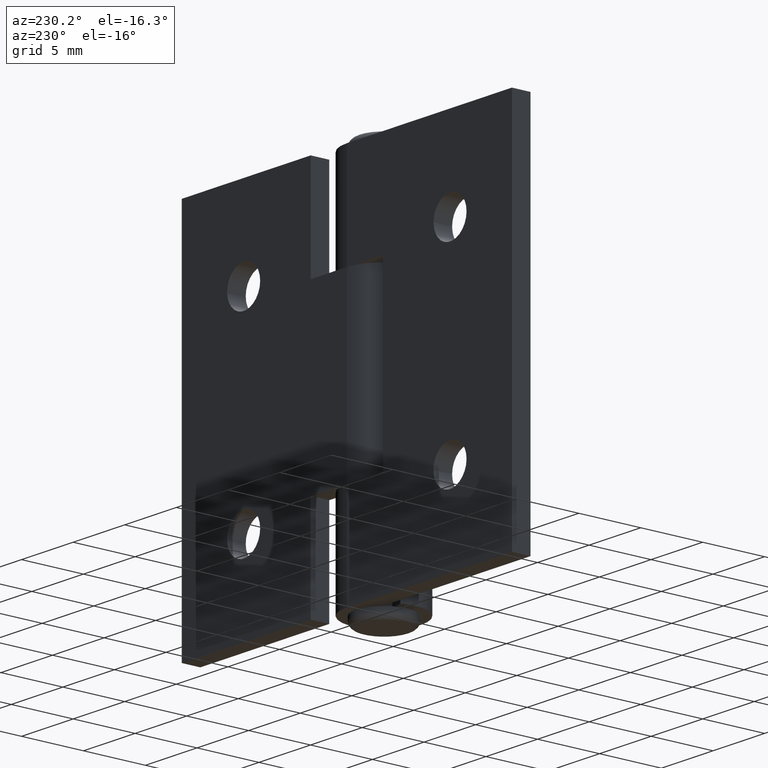
[diagram: clean part render]
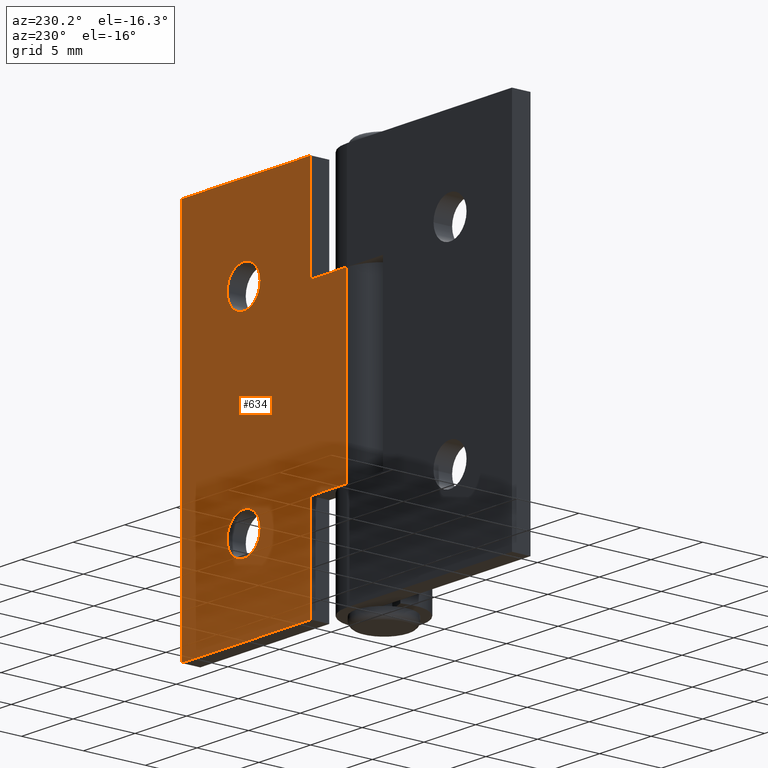
[diagram: same view with one face highlighted and labeled with its STEP entity id]
A machine part, auxiliary view. The second image highlights one B-rep face of the part: STEP entity #634.
In plain terms, the highlighted planar face has unit normal (0, 1, 0).
Its self-contained STEP definition (entity closure, byte-faithful):
#33=LINE('',#956,#87);
#37=LINE('',#967,#91);
#40=LINE('',#975,#94);
#44=LINE('',#986,#98);
#45=LINE('',#989,#99);
#51=LINE('',#999,#105);
#52=LINE('',#1001,#106);
#53=LINE('',#1002,#107);
#87=VECTOR('',#758,8.);
#91=VECTOR('',#768,3.5);
#94=VECTOR('',#773,3.5);
#98=VECTOR('',#783,8.);
#99=VECTOR('',#786,12.5);
#105=VECTOR('',#796,14.);
#106=VECTOR('',#797,12.5);
#107=VECTOR('',#798,30.);
#145=PLANE('',#685);
#167=FACE_BOUND('',#234,.T.);
#168=FACE_BOUND('',#235,.T.);
#190=FACE_OUTER_BOUND('',#233,.T.);
#233=EDGE_LOOP('',(#487,#488,#489,#490,#491,#492,#493,#494));
#234=EDGE_LOOP('',(#495));
#235=EDGE_LOOP('',(#496));
#279=CIRCLE('',#670,1.6);
#281=CIRCLE('',#673,1.6);
#307=VERTEX_POINT('',#940);
#309=VERTEX_POINT('',#945);
#313=VERTEX_POINT('',#953);
#314=VERTEX_POINT('',#955);
#318=VERTEX_POINT('',#965);
#321=VERTEX_POINT('',#972);
#322=VERTEX_POINT('',#974);
#326=VERTEX_POINT('',#984);
#327=VERTEX_POINT('',#988);
#330=VERTEX_POINT('',#1000);
#367=EDGE_CURVE('',#307,#307,#279,.T.);
#369=EDGE_CURVE('',#309,#309,#281,.T.);
#373=EDGE_CURVE('',#314,#313,#33,.T.);
#379=EDGE_CURVE('',#313,#318,#37,.T.);
#382=EDGE_CURVE('',#322,#321,#40,.T.);
#388=EDGE_CURVE('',#321,#326,#44,.T.);
#389=EDGE_CURVE('',#314,#327,#45,.T.);
#395=EDGE_CURVE('',#318,#322,#51,.T.);
#396=EDGE_CURVE('',#330,#326,#52,.T.);
#397=EDGE_CURVE('',#327,#330,#53,.T.);
#487=ORIENTED_EDGE('',*,*,#373,.T.);
#488=ORIENTED_EDGE('',*,*,#379,.T.);
#489=ORIENTED_EDGE('',*,*,#395,.T.);
#490=ORIENTED_EDGE('',*,*,#382,.T.);
#491=ORIENTED_EDGE('',*,*,#388,.T.);
#492=ORIENTED_EDGE('',*,*,#396,.F.);
#493=ORIENTED_EDGE('',*,*,#397,.F.);
#494=ORIENTED_EDGE('',*,*,#389,.F.);
#495=ORIENTED_EDGE('',*,*,#367,.T.);
#496=ORIENTED_EDGE('',*,*,#369,.T.);
#634=ADVANCED_FACE('',(#190,#167,#168),#145,.T.);
#670=AXIS2_PLACEMENT_3D('',#941,#744,#745);
#673=AXIS2_PLACEMENT_3D('',#946,#750,#751);
#685=AXIS2_PLACEMENT_3D('',#998,#794,#795);
#744=DIRECTION('center_axis',(0.,1.,0.));
#745=DIRECTION('ref_axis',(1.,1.38777878078145E-16,0.));
#750=DIRECTION('center_axis',(0.,1.,0.));
#751=DIRECTION('ref_axis',(1.,1.38777878078145E-16,0.));
#758=DIRECTION('',(0.,0.,1.));
#768=DIRECTION('',(1.,0.,0.));
#773=DIRECTION('',(-1.,0.,0.));
#783=DIRECTION('',(-8.32667268468868E-16,0.,1.));
#786=DIRECTION('',(-1.,0.,0.));
#794=DIRECTION('center_axis',(0.,-1.,0.));
#795=DIRECTION('ref_axis',(1.,0.,0.));
#796=DIRECTION('',(0.,0.,1.));
#797=DIRECTION('',(1.,0.,0.));
#798=DIRECTION('',(0.,0.,1.));
#940=CARTESIAN_POINT('',(-11.6,6.10622663543836E-16,-8.));
#941=CARTESIAN_POINT('Origin',(-10.,8.32667268468867E-16,-8.));
#945=CARTESIAN_POINT('',(-11.6,6.10622663543836E-16,8.));
#946=CARTESIAN_POINT('Origin',(-10.,8.32667268468867E-16,8.));
#953=CARTESIAN_POINT('',(-3.5,0.,-7.));
#955=CARTESIAN_POINT('',(-3.5,0.,-15.));
#956=CARTESIAN_POINT('',(-3.5,0.,-7.5));
#965=CARTESIAN_POINT('',(-5.55111512312578E-16,0.,-7.));
#967=CARTESIAN_POINT('',(-9.75,0.,-7.));
#972=CARTESIAN_POINT('',(-3.5,0.,7.));
#974=CARTESIAN_POINT('',(-5.55111512312578E-16,0.,7.));
#975=CARTESIAN_POINT('',(-6.5,0.,7.));
#984=CARTESIAN_POINT('',(-3.50000000000001,0.,15.));
#986=CARTESIAN_POINT('',(-3.5,0.,3.50000000000001));
#988=CARTESIAN_POINT('',(-16.,0.,-15.));
#989=CARTESIAN_POINT('',(-16.,0.,-15.));
#998=CARTESIAN_POINT('Origin',(-16.,0.,0.));
#999=CARTESIAN_POINT('',(-5.55111512312578E-16,0.,0.));
#1000=CARTESIAN_POINT('',(-16.,0.,15.));
#1001=CARTESIAN_POINT('',(-16.,0.,15.));
#1002=CARTESIAN_POINT('',(-16.,0.,0.));